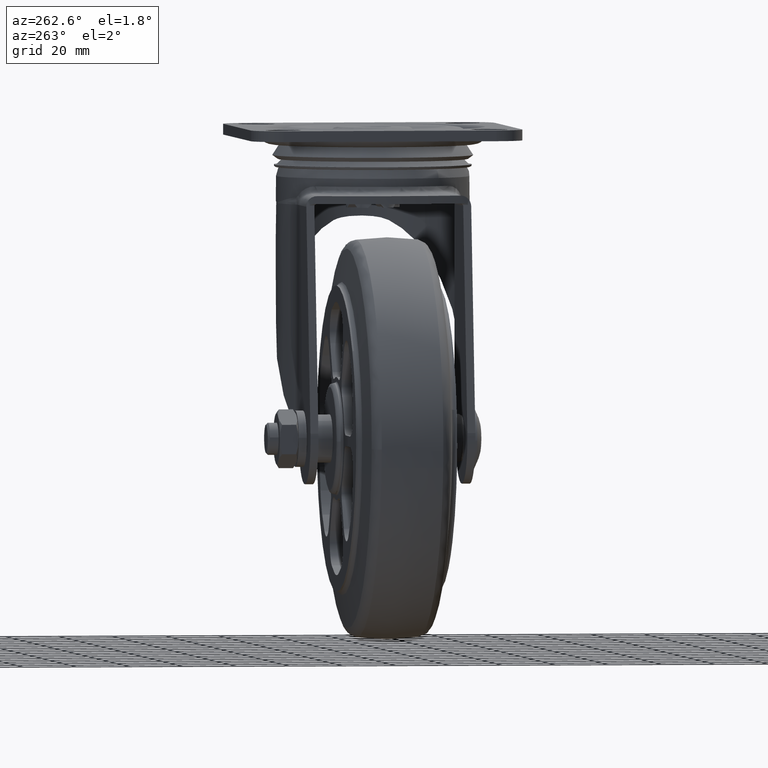
[diagram: clean part render]
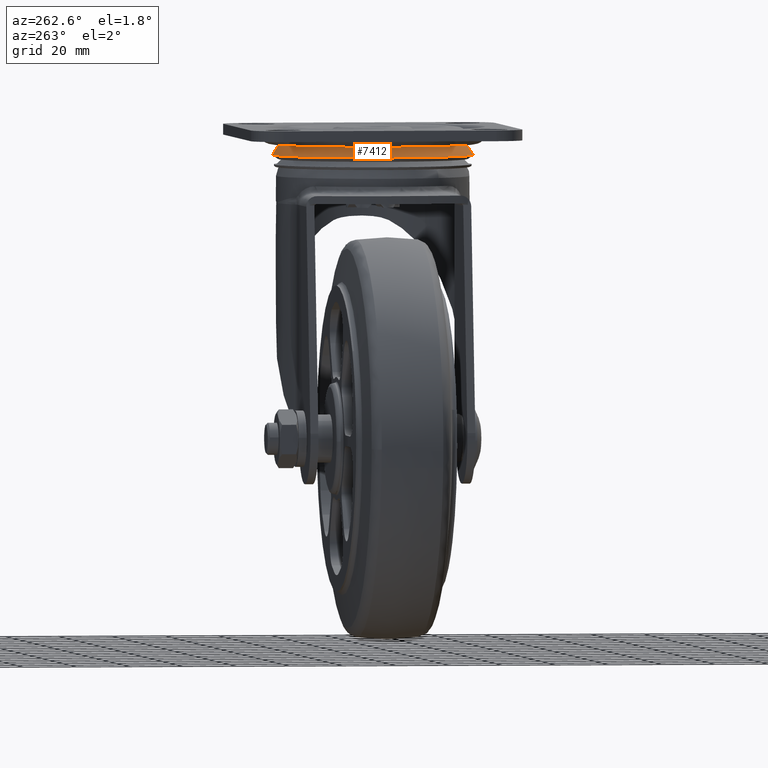
[diagram: same view with one face highlighted and labeled with its STEP entity id]
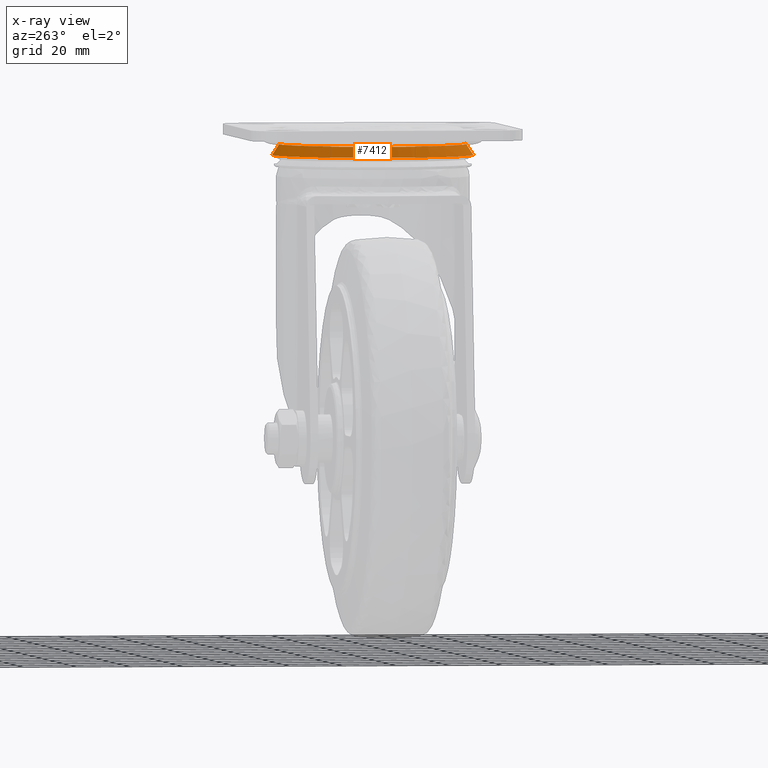
[diagram: x-ray of the same camera — body ghosted, the highlighted face saturated]
A machine part, auxiliary view. The second image highlights one B-rep face of the part: STEP entity #7412.
The next image is the same camera in x-ray: the body ghosted, the highlighted face saturated — about 0% of this face is hidden behind the body in this view.
In plain terms, the highlighted face is a freeform B-spline surface patch.
Its self-contained STEP definition (entity closure, byte-faithful):
#7215=CARTESIAN_POINT('',(45.278776991721337,37.255112724498971,104.500004316592790));
#7216=VERTEX_POINT('',#7215);
#7232=CARTESIAN_POINT('',(44.983584829783993,34.684888265649292,108.499999999954600));
#7233=VERTEX_POINT('',#7232);
#7234=CARTESIAN_POINT('',(44.983584829783993,34.684888265649292,108.499999999954600));
#7235=CARTESIAN_POINT('',(45.278776991721337,37.255112724498971,104.500004316592790));
#7236=QUASI_UNIFORM_CURVE('',1,(#7234,#7235),.UNSPECIFIED.,.F.,.U.);
#7237=EDGE_CURVE('',#7233,#7216,#7236,.T.);
#7254=CARTESIAN_POINT('',(43.131381412270017,-34.847778054992922,108.499999999999300));
#7255=VERTEX_POINT('',#7254);
#7269=CARTESIAN_POINT('',(43.289321336852709,-37.430072995874653,104.500004316595100));
#7270=VERTEX_POINT('',#7269);
#7271=CARTESIAN_POINT('',(43.131381412270017,-34.847778054992922,108.499999999999300));
#7272=CARTESIAN_POINT('',(43.289321336852709,-37.430072995874653,104.500004316595100));
#7273=QUASI_UNIFORM_CURVE('',1,(#7271,#7272),.UNSPECIFIED.,.F.,.U.);
#7274=EDGE_CURVE('',#7255,#7270,#7273,.T.);
#7307=CARTESIAN_POINT('',(43.127432914151278,-34.783220681470688,108.599999892085090));
#7308=CARTESIAN_POINT('',(8.344212232680420,-36.910653595621973,108.599999892085120));
#7309=CARTESIAN_POINT('',(6.216779318529142,-2.127432914151106,108.599999892085090));
#7310=CARTESIAN_POINT('',(4.089346404377864,32.655787767319744,108.599999892085120));
#7311=CARTESIAN_POINT('',(38.872567085848722,34.783220681471029,108.599999892085090));
#7312=CARTESIAN_POINT('',(41.931535359359081,34.970315196036125,108.599999892085120));
#7313=CARTESIAN_POINT('',(44.976205025454938,34.620632654180021,108.599999892085170));
#7314=CARTESIAN_POINT('',(43.293368547419107,-37.496244303734727,104.397504427207910));
#7315=CARTESIAN_POINT('',(5.797124243684203,-39.789612851153841,104.397504427207930));
#7316=CARTESIAN_POINT('',(3.503755696265095,-2.293368547418933,104.397504427207910));
#7317=CARTESIAN_POINT('',(1.210387148845989,35.202875756315976,104.397504427207930));
#7318=CARTESIAN_POINT('',(38.706631452580893,37.496244303735082,104.397504427207910));
#7319=CARTESIAN_POINT('',(42.004193307225918,37.697931826873450,104.397504427207890));
#7320=CARTESIAN_POINT('',(45.286341290863241,37.320974726257035,104.397504427207930));
#7328=(BOUNDED_SURFACE()B_SPLINE_SURFACE(2,1,((#7307,#7314),(#7308,#7315),(#7309,#7316),(#7310,#7317),(#7311,#7318),(#7312,#7319),(#7313,#7320)),.UNSPECIFIED.,.F.,.F.,.U.)B_SPLINE_SURFACE_WITH_KNOTS((3,2,2,3),(2,2),(0.0,62.241905414853427,124.483810829706900,131.952839479489310),(0.0,5.004897595522235),.UNSPECIFIED.)GEOMETRIC_REPRESENTATION_ITEM()RATIONAL_B_SPLINE_SURFACE(((1.0,1.0),(0.707106781186548,0.707106781186548),(1.0,1.0),(0.707106781186548,0.707106781186548),(1.0,1.0),(0.964852813742386,0.964852813742386),(0.938140952186599,0.938140952186599)))REPRESENTATION_ITEM('')SURFACE());
#7329=CARTESIAN_POINT('',(38.057782490650318,37.384418048044338,104.500004316628900));
#7330=VERTEX_POINT('',#7329);
#7331=CARTESIAN_POINT('',(38.057782490650325,37.384418048044331,104.500004316628890));
#7332=CARTESIAN_POINT('',(39.526620276178718,37.500018088794228,104.500004316595180));
#7333=CARTESIAN_POINT('',(41.0,37.500018088794228,104.500004316595200));
#7334=CARTESIAN_POINT('',(43.146397348815384,37.500018088794228,104.500004316595210));
#7335=CARTESIAN_POINT('',(45.278776991721344,37.255112724498971,104.500004316592780));
#7343=(BOUNDED_CURVE()B_SPLINE_CURVE(2,(#7331,#7332,#7333,#7334,#7335),.UNSPECIFIED.,.F.,.U.)B_SPLINE_CURVE_WITH_KNOTS((3,2,3),(0.236331300629818,0.250000000000000,0.269767755876738),.UNSPECIFIED.)CURVE()GEOMETRIC_REPRESENTATION_ITEM()RATIONAL_B_SPLINE_CURVE((0.969723356165662,0.983986122577896,1.0,0.976840633410174,0.957343736460409))REPRESENTATION_ITEM(''));
#7344=EDGE_CURVE('',#7330,#7216,#7343,.T.);
#7345=ORIENTED_EDGE('',*,*,#7344,.F.);
#7346=CARTESIAN_POINT('',(3.499981911205950,1.705303E-013,104.500004316595200));
#7347=VERTEX_POINT('',#7346);
#7348=CARTESIAN_POINT('',(3.499981911205950,1.705303E-013,104.500004316595200));
#7349=CARTESIAN_POINT('',(3.499981911205951,34.664660157694072,104.500004316595210));
#7350=CARTESIAN_POINT('',(38.057782490650318,37.384418048044338,104.500004316628970));
#7358=(BOUNDED_CURVE()B_SPLINE_CURVE(2,(#7348,#7349,#7350),.UNSPECIFIED.,.F.,.U.)B_SPLINE_CURVE_WITH_KNOTS((3,3),(0.0,0.236331300629818),.UNSPECIFIED.)CURVE()GEOMETRIC_REPRESENTATION_ITEM()RATIONAL_B_SPLINE_CURVE((1.0,0.723120658608651,0.969723356165662))REPRESENTATION_ITEM(''));
#7359=EDGE_CURVE('',#7347,#7330,#7358,.T.);
#7360=ORIENTED_EDGE('',*,*,#7359,.F.);
#7361=CARTESIAN_POINT('',(43.289321336852709,-37.430072995874646,104.500004316595120));
#7362=CARTESIAN_POINT('',(42.145729176360831,-37.500018088793880,104.500004316595150));
#7363=CARTESIAN_POINT('',(41.0,-37.500018088793880,104.500004316595200));
#7364=CARTESIAN_POINT('',(3.499981911205950,-37.500018088793887,104.500004316595210));
#7365=CARTESIAN_POINT('',(3.499981911205950,1.705303E-013,104.500004316595200));
#7373=(BOUNDED_CURVE()B_SPLINE_CURVE(2,(#7361,#7362,#7363,#7364,#7365),.UNSPECIFIED.,.F.,.U.)B_SPLINE_CURVE_WITH_KNOTS((3,2,3),(0.739332962241958,0.750000000000000,1.0),.UNSPECIFIED.)CURVE()GEOMETRIC_REPRESENTATION_ITEM()RATIONAL_B_SPLINE_CURVE((0.976072041673180,0.987502787903370,1.0,0.707106781186547,1.0))REPRESENTATION_ITEM(''));
#7374=EDGE_CURVE('',#7270,#7347,#7373,.T.);
#7375=ORIENTED_EDGE('',*,*,#7374,.F.);
#7376=ORIENTED_EDGE('',*,*,#7274,.F.);
#7377=CARTESIAN_POINT('',(6.087102353219152,1.705303E-013,108.500000000000000));
#7378=VERTEX_POINT('',#7377);
#7379=CARTESIAN_POINT('',(43.131381412270017,-34.847778054992915,108.499999999999360));
#7380=CARTESIAN_POINT('',(42.066685497874040,-34.912897646780678,108.499999999999990));
#7381=CARTESIAN_POINT('',(41.0,-34.912897646780678,108.500000000000000));
#7382=CARTESIAN_POINT('',(6.087102353219153,-34.912897646780671,108.500000000000000));
#7383=CARTESIAN_POINT('',(6.087102353219152,1.705303E-013,108.500000000000000));
#7391=(BOUNDED_CURVE()B_SPLINE_CURVE(2,(#7379,#7380,#7381,#7382,#7383),.UNSPECIFIED.,.F.,.U.)B_SPLINE_CURVE_WITH_KNOTS((3,2,3),(0.739332962241928,0.750000000000000,1.0),.UNSPECIFIED.)CURVE()GEOMETRIC_REPRESENTATION_ITEM()RATIONAL_B_SPLINE_CURVE((0.976072041673115,0.987502787903335,1.0,0.707106781186547,1.0))REPRESENTATION_ITEM(''));
#7392=EDGE_CURVE('',#7255,#7378,#7391,.T.);
#7393=ORIENTED_EDGE('',*,*,#7392,.T.);
#7394=CARTESIAN_POINT('',(6.087102353219152,1.705303E-013,108.500000000000000));
#7395=CARTESIAN_POINT('',(6.087102353219153,34.912897646781033,108.500000000000000));
#7396=CARTESIAN_POINT('',(41.0,34.912897646781033,108.500000000000000));
#7397=CARTESIAN_POINT('',(42.998317728296250,34.912897646781026,108.499999999999970));
#7398=CARTESIAN_POINT('',(44.983584829784000,34.684888265649292,108.499999999954600));
#7406=(BOUNDED_CURVE()B_SPLINE_CURVE(2,(#7394,#7395,#7396,#7397,#7398),.UNSPECIFIED.,.F.,.U.)B_SPLINE_CURVE_WITH_KNOTS((3,2,3),(0.0,0.250000000000000,0.269767755879252),.UNSPECIFIED.)CURVE()GEOMETRIC_REPRESENTATION_ITEM()RATIONAL_B_SPLINE_CURVE((1.0,0.707106781186547,1.0,0.976840633407230,0.957343736455451))REPRESENTATION_ITEM(''));
#7407=EDGE_CURVE('',#7378,#7233,#7406,.T.);
#7408=ORIENTED_EDGE('',*,*,#7407,.T.);
#7409=ORIENTED_EDGE('',*,*,#7237,.T.);
#7410=EDGE_LOOP('',(#7345,#7360,#7375,#7376,#7393,#7408,#7409));
#7411=FACE_OUTER_BOUND('',#7410,.T.);
#7412=ADVANCED_FACE('',(#7411),#7328,.T.);